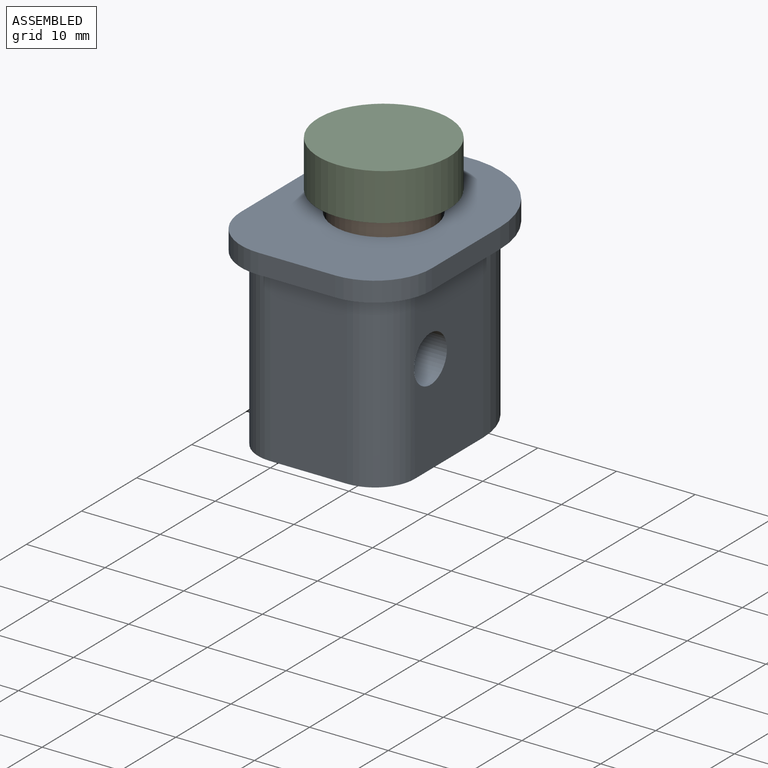
[diagram: assembled view]
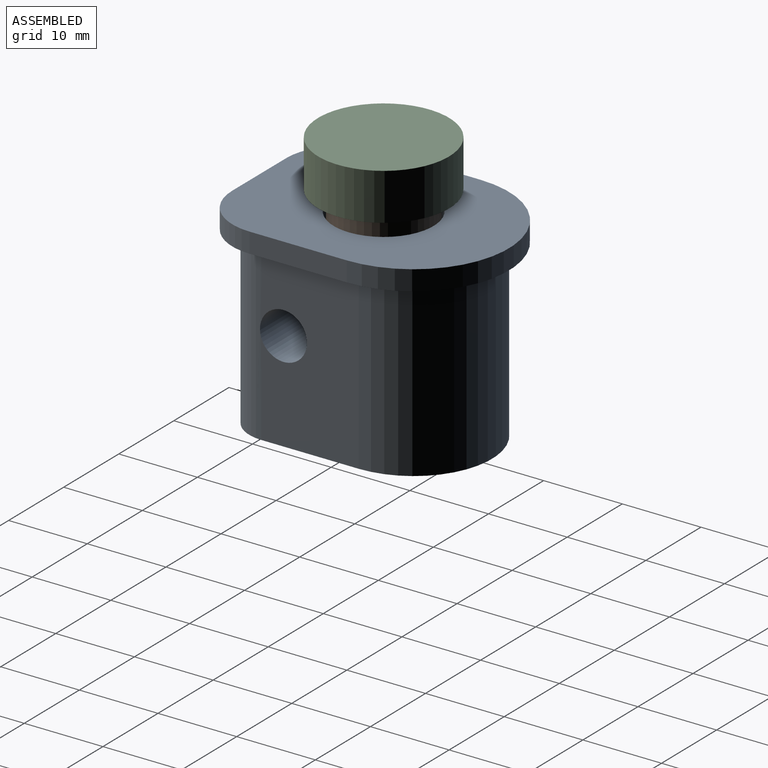
[diagram: assembled view, second angle]
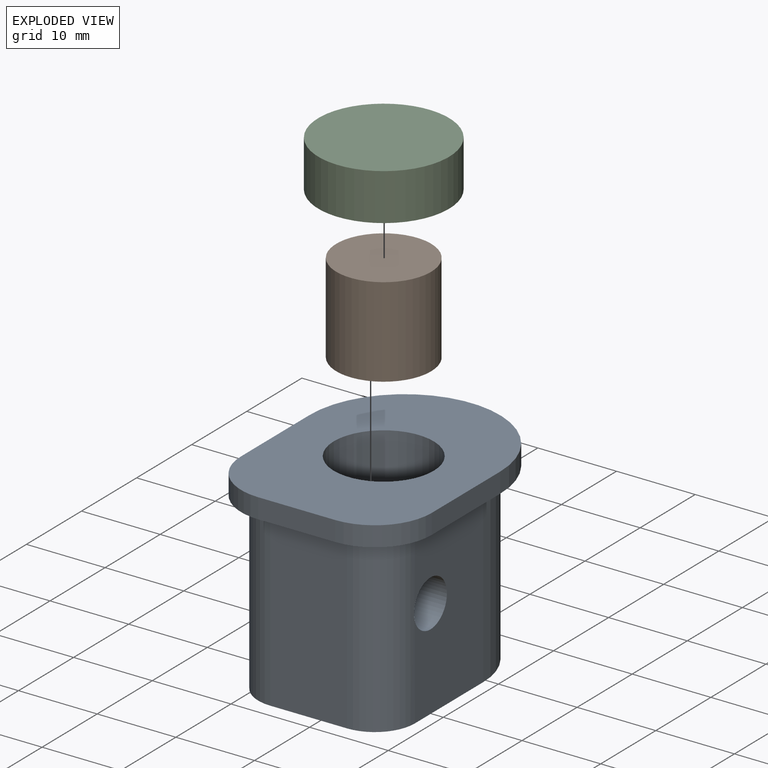
[diagram: exploded view]
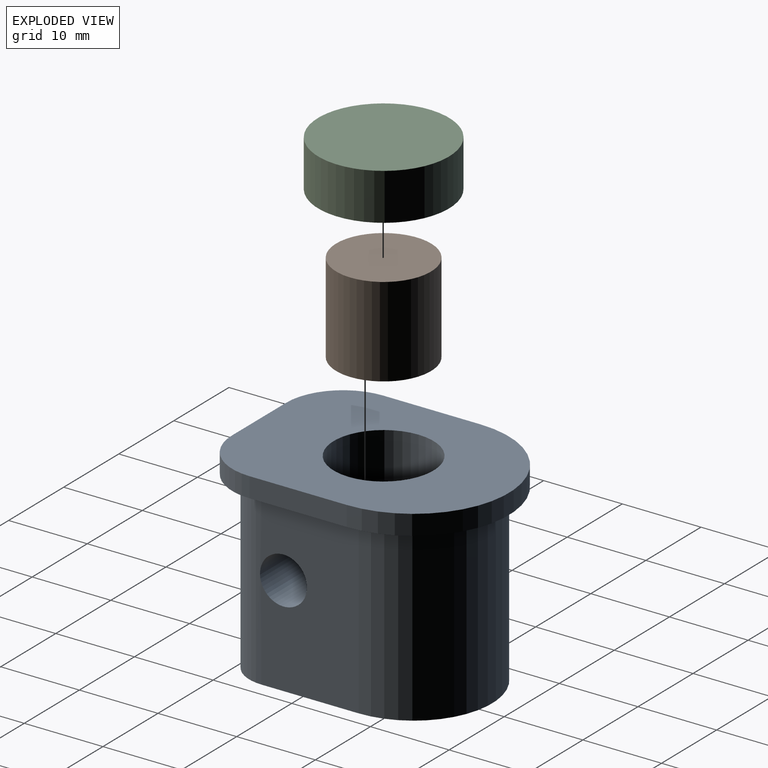
[diagram: exploded view, second angle]
ASSEMBLY  parts=3 mates=4
PART A: 18 faces, bbox 24.3x31.8x24.8 mm
  f0: plane 22.23x12.38mm, normal (1,0,0), area 247.4mm2, adj f1,f5,f6,f7,f8
  f1: cylinder r=9.97mm len=22.23mm, axis (0,0,-1), area 696.1mm2, adj f0,f2,f6,f8
  f2: plane 22.23x12.38mm, normal (-1,0,0), area 247.4mm2, adj f1,f3,f6,f7,f8
  f3: cylinder r=5.08mm len=22.23mm, axis (0,0,-1), area 177.1mm2, adj f2,f4,f6,f7,f8
  f4: plane 22.23x9.78mm, normal (0,-1,0), area 217.3mm2, adj f3,f5,f6,f8
  f5: cylinder r=5.08mm len=22.23mm, axis (0,0,-1), area 177.1mm2, adj f0,f4,f6,f7,f8
  f6: plane 27.43x19.94mm, normal (0,0,-1), area 493.2mm2, adj f0,f1,f2,f3,f4,f5
  f7: cylinder r=2.98mm len=19.94mm, axis (-1,0,0), area 373.9mm2, adj f0,f2,f3,f5
  f8: plane 31.75x24.26mm, normal (0,0,-1), area 191.3mm2, adj f0,f1,f2,f3,f4,f5,f9,f10
  f9: cylinder r=7.24mm len=7.24mm, axis (0,0,-1), area 28.9mm2, adj f8,f10,f14,f15
  f10: plane 9.78x2.54mm, normal (0,-1,0), area 24.8mm2, adj f8,f9,f11,f15
  f11: cylinder r=7.24mm len=7.24mm, axis (0,0,-1), area 28.9mm2, adj f8,f10,f12,f15
  f12: plane 12.38x2.54mm, normal (1,0,0), area 31.5mm2, adj f8,f11,f13,f15
  f13: cylinder r=12.13mm len=24.26mm, axis (0,0,-1), area 96.8mm2, adj f8,f12,f14,f15
  f14: plane 12.38x2.54mm, normal (-1,0,0), area 31.5mm2, adj f8,f9,f13,f15
  f15: plane 31.75x24.26mm, normal (0,0,1), area 557.9mm2, adj f9,f10,f11,f12,f13,f14,f16
  f16: cylinder r=6.35mm len=12.7mm, axis (0,0,1), area 253.4mm2, adj f15,f17
  f17: plane 12.7x12.7mm, normal (0,0,1), area 126.7mm2, adj f16
PART B: 3 faces, bbox 12.1x12.1x11.4 mm
  f0: cylinder r=6.03mm len=12.07mm, axis (0,0,-1), area 433.2mm2, adj f1,f2
  f1: plane 12.07x12.07mm, normal (0,0,1), area 114.3mm2, adj f0
  f2: plane 12.07x12.07mm, normal (0,0,-1), area 114.3mm2, adj f0
PART C: 5 faces, bbox 16.6x16.6x6 mm
  f0: cylinder r=8.32mm len=16.64mm, axis (0,0,-1), area 312mm2, adj f1,f2
  f1: plane 16.64x16.64mm, normal (0,0,1), area 90.7mm2, adj f0,f3
  f2: plane 16.64x16.64mm, normal (0,0,-1), area 217.4mm2, adj f0
  f3: cylinder r=6.35mm len=12.7mm, axis (0,0,1), area 101.3mm2, adj f1,f4
  f4: plane 12.7x12.7mm, normal (0,0,1), area 126.7mm2, adj f3
PLACE A t=(-10.57,-9.37,3.29)mm fixed
PLACE B rot(axis=(0,0,-1),16.7deg) t=(-10.57,4.28,21.7)mm
PLACE C rot(axis=(0.8,0.6,0),180deg) t=(-10.57,4.28,36.56)mm
MATE planar B.f0 <-> C.f3  axis (0,0,1) through (-10.57,4.28,33.13)mm
MATE cylindrical C.f3 <-> B.f0  axis (0,0,-1) through (-10.57,4.28,31.86)mm
MATE planar A.f16 <-> B.f0  axis (0,0,1) through (-10.57,4.28,21.7)mm
MATE cylindrical B.f0 <-> A.f16  axis (0,0,-1) through (-10.57,4.28,27.42)mm
